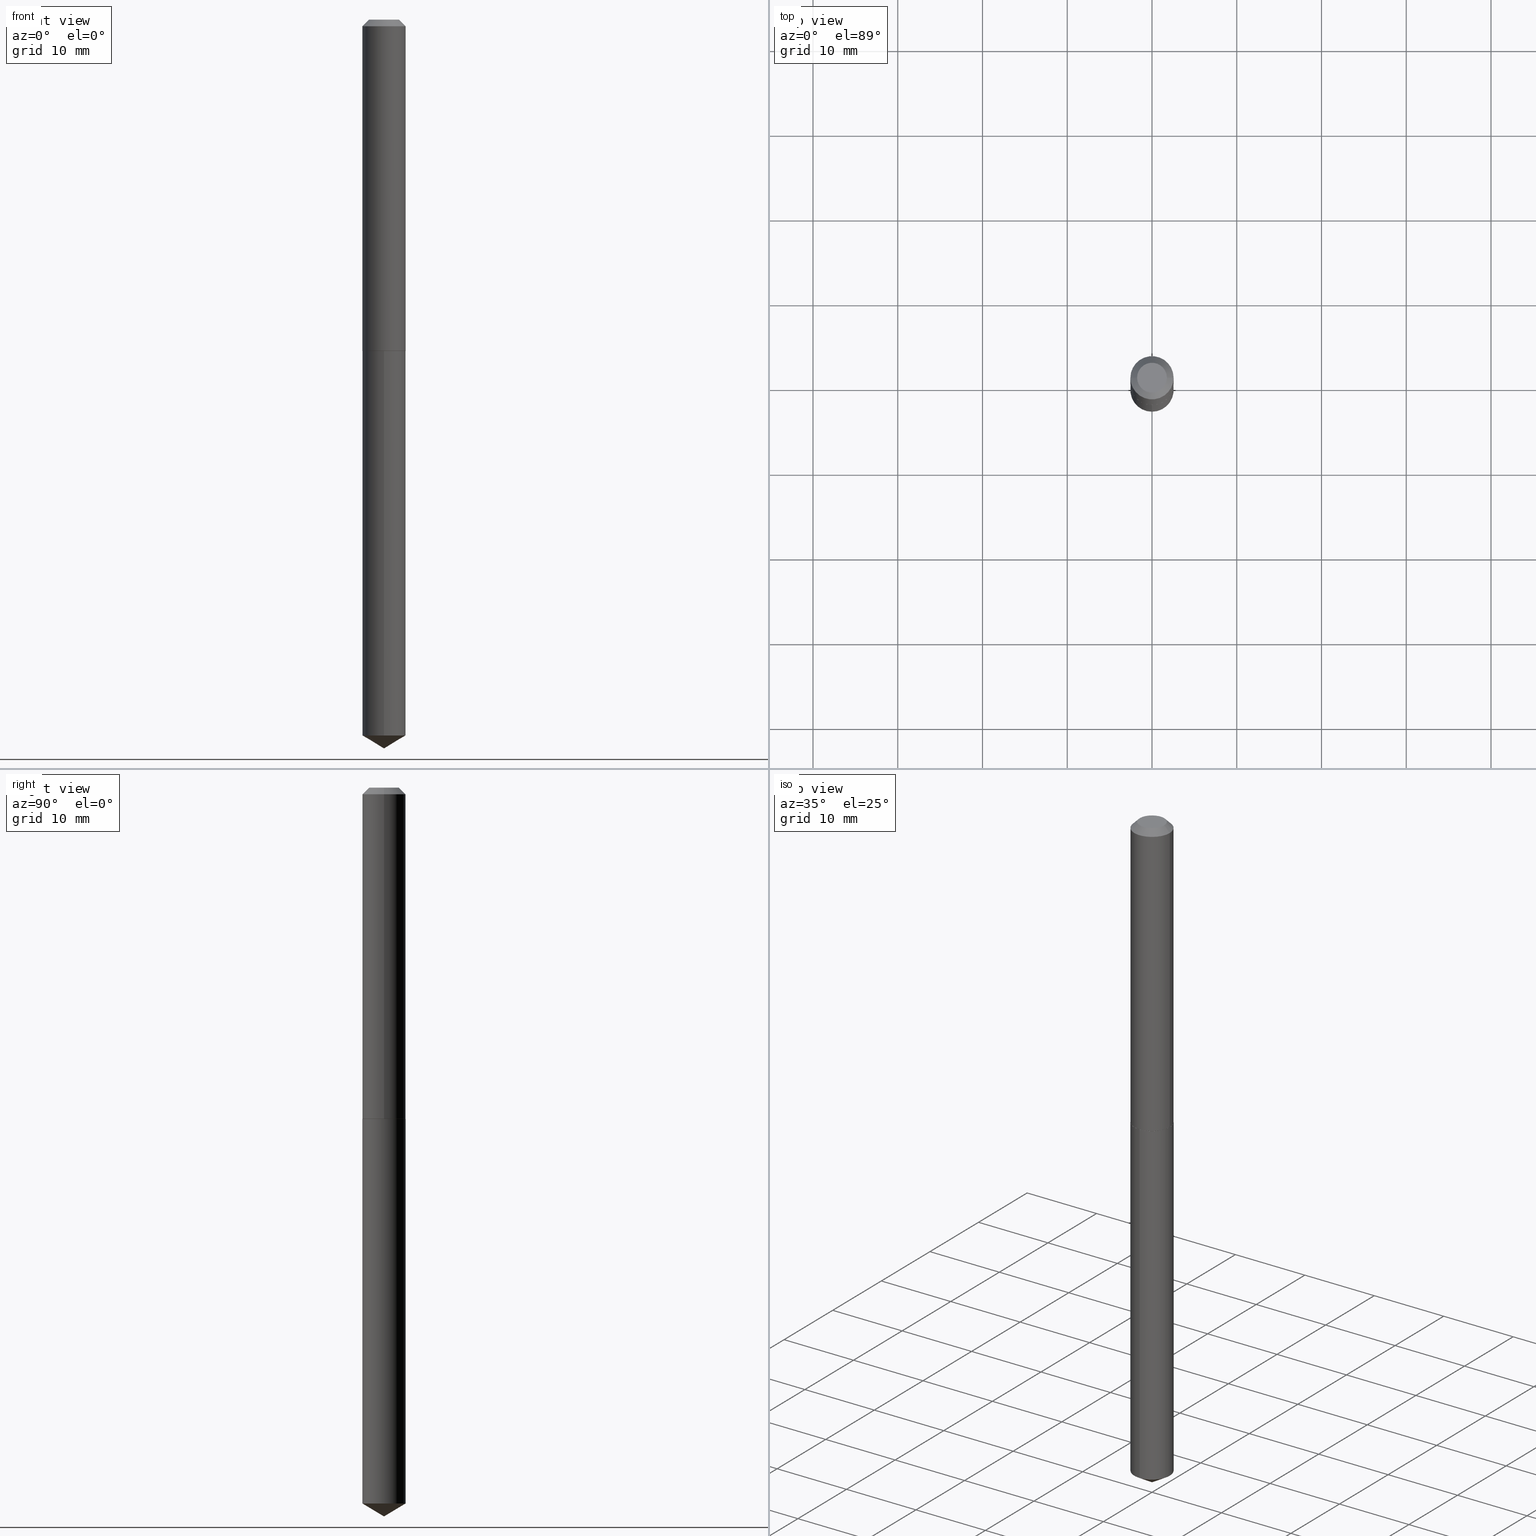
[diagram: canonical four-view strip — front | top / right | iso, engineering-drawing reading convention]
A machine part, canonical four-view strip (front | top / right | iso — engineering-drawing reading convention). The complete STEP part file that produces these views, byte-faithful:
ISO-10303-21;
HEADER;
FILE_DESCRIPTION (( 'STEP AP203' ),
    '1' );
FILE_NAME ('61084.STEP',
    '2024-04-23T03:30:29',
    ( '' ),
    ( '' ),
    'SwSTEP 2.0',
    'SolidWorks 2023',
    '' );
FILE_SCHEMA (( 'CONFIG_CONTROL_DESIGN' ));
ENDSEC;

DATA;
#1 = DIRECTION ( 'NONE',  ( 1.000000000000000000, -6.982962677686261977E-15, 0.000000000000000000 ) ) ;
#2 = FACE_OUTER_BOUND ( 'NONE', #366, .T. ) ;
#3 = PERSON_AND_ORGANIZATION ( #116, #146 ) ;
#4 = VERTEX_POINT ( 'NONE', #136 ) ;
#5 = CIRCLE ( 'NONE', #184, 0.06915000000000000313 ) ;
#6 =( LENGTH_UNIT ( ) NAMED_UNIT ( * ) SI_UNIT ( $, .METRE. ) );
#7 = ORIENTED_EDGE ( 'NONE', *, *, #261, .T. ) ;
#8 = DIRECTION ( 'NONE',  ( -2.445468806185136877E-29, 3.491481338843145188E-15, 1.000000000000000000 ) ) ;
#9 = ORIENTED_EDGE ( 'NONE', *, *, #273, .T. ) ;
#10 = APPLICATION_PROTOCOL_DEFINITION ( 'international standard', 'config_control_design', 1994, #330 ) ;
#11 = ADVANCED_FACE ( 'NONE', ( #264 ), #385, .F. ) ;
#12 = CIRCLE ( 'NONE', #70, 0.1004000000000000031 ) ;
#13 = CC_DESIGN_SECURITY_CLASSIFICATION ( #97, ( #185 ) ) ;
#14 = DIRECTION ( 'NONE',  ( -2.445468806185136597E-29, 3.491481338843145583E-15, 1.000000000000000000 ) ) ;
#15 = ORIENTED_EDGE ( 'NONE', *, *, #56, .F. ) ;
#16 = ORIENTED_EDGE ( 'NONE', *, *, #58, .T. ) ;
#17 = CALENDAR_DATE ( 2024, 22, 4 ) ;
#18 = DIRECTION ( 'NONE',  ( -1.000000000000000000, 6.982962677686265922E-15, -4.876176775795935793E-29 ) ) ;
#19 = CARTESIAN_POINT ( 'NONE',  ( -0.1004000000000001835, -4.659655725642575772E-15, -1.538900000000000379 ) ) ;
#20 = PLANE ( 'NONE',  #218 ) ;
#21 = ADVANCED_BREP_SHAPE_REPRESENTATION ( '61084', ( #381, #253, #173 ), #67 ) ;
#22 = CALENDAR_DATE ( 2024, 22, 4 ) ;
#23 = ADVANCED_FACE ( 'NONE', ( #202 ), #20, .F. ) ;
#24 = CARTESIAN_POINT ( 'NONE',  ( -0.1004000000000000864, 7.133849067031412005E-16, -4.938610830615929898E-30 ) ) ;
#25 = CARTESIAN_POINT ( 'NONE',  ( 3.764554680241400051E-29, -5.374786373015138969E-15, -1.539400000000000324 ) ) ;
#26 = CARTESIAN_POINT ( 'NONE',  ( 7.642090019328602662E-31, -1.091087918388490267E-16, -0.03125000000000020817 ) ) ;
#27 = DIRECTION ( 'NONE',  ( -1.000000000000000000, 6.982962677686266711E-15, 0.000000000000000000 ) ) ;
#28 = FACE_OUTER_BOUND ( 'NONE', #175, .T. ) ;
#29 = DIRECTION ( 'NONE',  ( -2.445468806185136597E-29, 3.491481338843145583E-15, 1.000000000000000000 ) ) ;
#30 = EDGE_CURVE ( 'NONE', #124, #69, #66, .T. ) ;
#31 = MECHANICAL_CONTEXT ( 'NONE', #330, 'mechanical' ) ;
#32 = CALENDAR_DATE ( 2024, 22, 4 ) ;
#33 = ORIENTED_EDGE ( 'NONE', *, *, #372, .F. ) ;
#34 = AXIS2_PLACEMENT_3D ( 'NONE', #332, #178, #60 ) ;
#35 = AXIS2_PLACEMENT_3D ( 'NONE', #59, #325, #1 ) ;
#36 = LINE ( 'NONE', #90, #153 ) ;
#37 = ORIENTED_EDGE ( 'NONE', *, *, #85, .F. ) ;
#38 = DIRECTION ( 'NONE',  ( 2.445468806185136597E-29, -3.491481338843145583E-15, -1.000000000000000000 ) ) ;
#39 = ORIENTED_EDGE ( 'NONE', *, *, #182, .T. ) ;
#40 = APPROVAL ( #201, 'UNSPECIFIED' ) ;
#41 = PERSON_AND_ORGANIZATION_ROLE ( 'design_supplier' ) ;
#42 = ORIENTED_EDGE ( 'NONE', *, *, #389, .T. ) ;
#43 = EDGE_LOOP ( 'NONE', ( #374, #341, #227, #292 ) ) ;
#44 = PRODUCT_DEFINITION ( 'UNKNOWN', '', #185, #148 ) ;
#45 = DATE_AND_TIME ( #263, #339 ) ;
#46 = ORIENTED_EDGE ( 'NONE', *, *, #76, .T. ) ;
#47 = AXIS2_PLACEMENT_3D ( 'NONE', #269, #81, #121 ) ;
#48 = COORDINATED_UNIVERSAL_TIME_OFFSET ( 5, 0, .BEHIND. ) ;
#49 = DIRECTION ( 'NONE',  ( -2.438088387897960049E-29, 3.491481338843145188E-15, 1.000000000000000000 ) ) ;
#50 = EDGE_CURVE ( 'NONE', #95, #72, #383, .T. ) ;
#51 = SHAPE_DEFINITION_REPRESENTATION ( #305, #21 ) ;
#52 = DIRECTION ( 'NONE',  ( -2.445422507803633721E-29, 3.491547640760597732E-15, 1.000000000000000000 ) ) ;
#53 = CYLINDRICAL_SURFACE ( 'NONE', #131, 0.1004000000000000031 ) ;
#54 = DIRECTION ( 'NONE',  ( -2.445468806185136597E-29, 3.491481338843145583E-15, 1.000000000000000000 ) ) ;
#55 = CIRCLE ( 'NONE', #316, 0.1004000000000000031 ) ;
#56 = EDGE_CURVE ( 'NONE', #69, #72, #169, .T. ) ;
#57 = DIRECTION ( 'NONE',  ( 2.445422507803633441E-29, -3.491547640760597732E-15, -1.000000000000000000 ) ) ;
#58 = EDGE_CURVE ( 'NONE', #194, #133, #12, .T. ) ;
#59 = CARTESIAN_POINT ( 'NONE',  ( 3.764554680241400612E-29, -5.374786373015140547E-15, -1.539400000000000546 ) ) ;
#60 = DIRECTION ( 'NONE',  ( 1.000000000000000000, -6.982962677686269866E-15, 0.000000000000000000 ) ) ;
#61 = AXIS2_PLACEMENT_3D ( 'NONE', #26, #29, #149 ) ;
#62 = CC_DESIGN_PERSON_AND_ORGANIZATION_ASSIGNMENT ( #3, #122, ( #92 ) ) ;
#63 = CARTESIAN_POINT ( 'NONE',  ( -7.010894528396636059E-16, -0.1004000000000053877, -1.539399999999999880 ) ) ;
#64 = VERTEX_POINT ( 'NONE', #376 ) ;
#65 = DIRECTION ( 'NONE',  ( 1.000000000000000000, -6.982962677686266711E-15, 4.876176775795936353E-29 ) ) ;
#66 = CIRCLE ( 'NONE', #245, 0.1004000000000001835 ) ;
#67 =( GEOMETRIC_REPRESENTATION_CONTEXT ( 3 ) GLOBAL_UNCERTAINTY_ASSIGNED_CONTEXT ( ( #109 ) ) GLOBAL_UNIT_ASSIGNED_CONTEXT ( ( #98, #304, #340 ) ) REPRESENTATION_CONTEXT ( 'NONE', 'WORKASPACE' ) );
#68 = DIRECTION ( 'NONE',  ( -2.445422507803633721E-29, 3.491547640760597732E-15, 1.000000000000000000 ) ) ;
#69 = VERTEX_POINT ( 'NONE', #19 ) ;
#70 = AXIS2_PLACEMENT_3D ( 'NONE', #324, #355, #349 ) ;
#71 = VECTOR ( 'NONE', #191, 39.37007874015748143 ) ;
#72 = VERTEX_POINT ( 'NONE', #138 ) ;
#73 = DIRECTION ( 'NONE',  ( 1.000000000000000000, -6.982962677686266711E-15, 4.876176775795936353E-29 ) ) ;
#74 = PERSON_AND_ORGANIZATION ( #116, #146 ) ;
#75 = CARTESIAN_POINT ( 'NONE',  ( 8.249952469089983672E-30, -9.584402790879764099E-15, -1.539400000000000546 ) ) ;
#76 = EDGE_CURVE ( 'NONE', #228, #124, #258, .T. ) ;
#77 = CONICAL_SURFACE ( 'NONE', #347, 0.1004000000000000031, 0.7853981633974449483 ) ;
#78 = FACE_OUTER_BOUND ( 'NONE', #144, .T. ) ;
#79 = VERTEX_POINT ( 'NONE', #172 ) ;
#80 = EDGE_CURVE ( 'NONE', #343, #351, #112, .T. ) ;
#81 = DIRECTION ( 'NONE',  ( -2.445468806185136597E-29, 3.491481338843145583E-15, 1.000000000000000000 ) ) ;
#82 = DIRECTION ( 'NONE',  ( -6.982962677686265922E-15, -1.000000000000000000, 3.468864327941536233E-15 ) ) ;
#83 = LINE ( 'NONE', #331, #309 ) ;
#84 = DIRECTION ( 'NONE',  ( -2.445422507803633721E-29, 3.491547640760597732E-15, 1.000000000000000000 ) ) ;
#85 = EDGE_CURVE ( 'NONE', #95, #64, #5, .T. ) ;
#86 = DIRECTION ( 'NONE',  ( -2.445468806185136597E-29, 3.491481338843145583E-15, 1.000000000000000000 ) ) ;
#87 = AXIS2_PLACEMENT_3D ( 'NONE', #356, #84, #300 ) ;
#88 = PERSON_AND_ORGANIZATION ( #116, #146 ) ;
#89 = ORIENTED_EDGE ( 'NONE', *, *, #261, .F. ) ;
#90 = CARTESIAN_POINT ( 'NONE',  ( 8.279711526921545048E-29, -1.182168200208723334E-14, -3.385800000000000143 ) ) ;
#91 = EDGE_LOOP ( 'NONE', ( #251, #37, #312, #275 ) ) ;
#92 = PRODUCT ( '61084', '61084', '', ( #31 ) ) ;
#93 = LENGTH_MEASURE_WITH_UNIT ( LENGTH_MEASURE( 0.02539999999999999897 ), #6 );
#94 = APPROVAL ( #220, 'UNSPECIFIED' ) ;
#95 = VERTEX_POINT ( 'NONE', #106 ) ;
#96 = VECTOR ( 'NONE', #243, 39.37007874015748143 ) ;
#97 = SECURITY_CLASSIFICATION ( '', '', #382 ) ;
#98 =( CONVERSION_BASED_UNIT ( 'INCH', #93 ) LENGTH_UNIT ( ) NAMED_UNIT ( #210 ) );
#99 = ORIENTED_EDGE ( 'NONE', *, *, #372, .T. ) ;
#100 = ADVANCED_FACE ( 'NONE', ( #260 ), #262, .T. ) ;
#101 = ORIENTED_EDGE ( 'NONE', *, *, #58, .F. ) ;
#102 = DIRECTION ( 'NONE',  ( 0.7071067811863059882, -2.468850131079726789E-15, 0.7071067811867890462 ) ) ;
#103 = AXIS2_PLACEMENT_3D ( 'NONE', #154, #239, #390 ) ;
#104 = CC_DESIGN_APPROVAL ( #244, ( #185 ) ) ;
#105 = APPROVAL_ROLE ( '' ) ;
#106 = CARTESIAN_POINT ( 'NONE',  ( -0.06915000000000000313, 5.374262650814287077E-16, 4.837354856596389538E-19 ) ) ;
#107 = PERSON_AND_ORGANIZATION ( #116, #146 ) ;
#108 = CARTESIAN_POINT ( 'NONE',  ( -0.1004000000000000031, 5.919806610008520747E-16, -0.03125000000000020817 ) ) ;
#109 = UNCERTAINTY_MEASURE_WITH_UNIT (LENGTH_MEASURE( 1.000000000000000082E-05 ), #98, 'distance_accuracy_value', 'NONE');
#110 = COORDINATED_UNIVERSAL_TIME_OFFSET ( 5, 0, .BEHIND. ) ;
#111 = ORIENTED_EDGE ( 'NONE', *, *, #389, .F. ) ;
#112 = CIRCLE ( 'NONE', #235, 0.1004000000000000031 ) ;
#113 = LOCAL_TIME ( 23, 30, 29.00000000000000000, #289 ) ;
#114 = DIRECTION ( 'NONE',  ( -2.445468806185136597E-29, 3.491481338843145583E-15, 1.000000000000000000 ) ) ;
#115 = FACE_OUTER_BOUND ( 'NONE', #43, .T. ) ;
#116 = PERSON ( 'UNSPECIFIED', 'UNSPECIFIED', 'UNSPECIFIED', ('UNSPECIFIED'), ('UNSPECIFIED'), ('UNSPECIFIED') ) ;
#117 = DIRECTION ( 'NONE',  ( -2.445422507803633721E-29, 3.491547640760597732E-15, 1.000000000000000000 ) ) ;
#118 = FACE_OUTER_BOUND ( 'NONE', #91, .T. ) ;
#119 = CARTESIAN_POINT ( 'NONE',  ( -7.010894528396636059E-16, -0.1004000000000053877, -1.539399999999999880 ) ) ;
#120 = ADVANCED_FACE ( 'NONE', ( #78 ), #290, .T. ) ;
#121 = DIRECTION ( 'NONE',  ( 1.000000000000000000, -6.982962677686269866E-15, 0.000000000000000000 ) ) ;
#122 = PERSON_AND_ORGANIZATION_ROLE ( 'design_owner' ) ;
#123 = VECTOR ( 'NONE', #386, 39.37007874015748143 ) ;
#124 = VERTEX_POINT ( 'NONE', #329 ) ;
#125 = ADVANCED_FACE ( 'NONE', ( #28 ), #217, .F. ) ;
#126 = EDGE_LOOP ( 'NONE', ( #190, #39, #46, #345 ) ) ;
#127 = ORIENTED_EDGE ( 'NONE', *, *, #182, .F. ) ;
#128 = DIRECTION ( 'NONE',  ( -2.445468806185136597E-29, 3.491481338843145583E-15, 1.000000000000000000 ) ) ;
#129 = EDGE_CURVE ( 'NONE', #314, #351, #150, .T. ) ;
#130 = EDGE_LOOP ( 'NONE', ( #89, #42, #99, #286 ) ) ;
#131 = AXIS2_PLACEMENT_3D ( 'NONE', #237, #117, #387 ) ;
#132 = CARTESIAN_POINT ( 'NONE',  ( 8.132259247235019686E-29, -1.161094741584563161E-14, -3.325473593849634035 ) ) ;
#133 = VERTEX_POINT ( 'NONE', #272 ) ;
#134 = CC_DESIGN_PERSON_AND_ORGANIZATION_ASSIGNMENT ( #74, #375, ( #97 ) ) ;
#135 = DATE_AND_TIME ( #22, #113 ) ;
#136 = CARTESIAN_POINT ( 'NONE',  ( 0.1004000000000000031, -8.101982446785502760E-16, -0.03125000000000020817 ) ) ;
#137 = CALENDAR_DATE ( 2024, 22, 4 ) ;
#138 = CARTESIAN_POINT ( 'NONE',  ( -0.1004000000000000031, -2.027689805389141589E-15, -0.03125000000000020817 ) ) ;
#139 = CIRCLE ( 'NONE', #61, 0.1004000000000000031 ) ;
#140 = ADVANCED_FACE ( 'NONE', ( #267 ), #53, .T. ) ;
#141 = DIRECTION ( 'NONE',  ( 1.000000000000000000, -6.982962677686267499E-15, 4.876150890010814113E-29 ) ) ;
#142 = DIRECTION ( 'NONE',  ( 1.000000000000000000, -6.982962677686265922E-15, 4.876176775795935793E-29 ) ) ;
#143 = APPROVAL_STATUS ( 'not_yet_approved' ) ;
#144 = EDGE_LOOP ( 'NONE', ( #165, #159, #337 ) ) ;
#145 = AXIS2_PLACEMENT_3D ( 'NONE', #361, #357, #27 ) ;
#146 = ORGANIZATION ( 'UNSPECIFIED', 'UNSPECIFIED', '' ) ;
#147 = DIRECTION ( 'NONE',  ( -2.445422507803633721E-29, 3.491547640760597732E-15, 1.000000000000000000 ) ) ;
#148 = DESIGN_CONTEXT ( 'detailed design', #276, 'design' ) ;
#149 = DIRECTION ( 'NONE',  ( 1.000000000000000000, -6.982962677686266711E-15, 0.000000000000000000 ) ) ;
#150 = LINE ( 'NONE', #156, #333 ) ;
#151 = ADVANCED_FACE ( 'NONE', ( #183 ), #265, .T. ) ;
#152 = CIRCLE ( 'NONE', #270, 0.06915000000000000313 ) ;
#153 = VECTOR ( 'NONE', #187, 39.37007874015748854 ) ;
#154 = CARTESIAN_POINT ( 'NONE',  ( 3.763331945838307250E-29, -5.373040632345718254E-15, -1.538900000000000379 ) ) ;
#155 = ADVANCED_FACE ( 'NONE', ( #296 ), #378, .T. ) ;
#156 = CARTESIAN_POINT ( 'NONE',  ( 8.279855320316373455E-29, -1.182147787174378112E-14, -3.385800000000000143 ) ) ;
#157 = CARTESIAN_POINT ( 'NONE',  ( 0.1004000000000000864, -7.010894528397017670E-16, 4.895681482899124059E-30 ) ) ;
#158 = ORIENTED_EDGE ( 'NONE', *, *, #56, .T. ) ;
#159 = ORIENTED_EDGE ( 'NONE', *, *, #129, .T. ) ;
#160 = CC_DESIGN_PERSON_AND_ORGANIZATION_ASSIGNMENT ( #107, #293, ( #185 ) ) ;
#161 = CARTESIAN_POINT ( 'NONE',  ( 3.764554680241400051E-29, -5.374786373015138969E-15, -1.539400000000000324 ) ) ;
#162 = ORIENTED_EDGE ( 'NONE', *, *, #129, .F. ) ;
#163 = CARTESIAN_POINT ( 'NONE',  ( -7.010894528396199227E-16, -0.1004000000000116188, -3.325473593849633591 ) ) ;
#164 = ADVANCED_FACE ( 'NONE', ( #2 ), #213, .T. ) ;
#165 = ORIENTED_EDGE ( 'NONE', *, *, #308, .F. ) ;
#166 = PERSON_AND_ORGANIZATION ( #116, #146 ) ;
#167 = EDGE_LOOP ( 'NONE', ( #162, #196, #111 ) ) ;
#168 = PERSON_AND_ORGANIZATION ( #116, #146 ) ;
#169 = LINE ( 'NONE', #24, #224 ) ;
#170 = ADVANCED_FACE ( 'NONE', ( #115 ), #203, .T. ) ;
#171 = DATE_TIME_ROLE ( 'classification_date' ) ;
#172 = CARTESIAN_POINT ( 'NONE',  ( -0.09990000000000034963, -4.662304952816686973E-15, -1.539400000000000546 ) ) ;
#173 = AXIS2_PLACEMENT_3D ( 'NONE', #274, #342, #195 ) ;
#174 = DATE_AND_TIME ( #137, #379 ) ;
#175 = EDGE_LOOP ( 'NONE', ( #16, #348 ) ) ;
#176 = ADVANCED_FACE ( 'NONE', ( #118 ), #362, .T. ) ;
#177 = CARTESIAN_POINT ( 'NONE',  ( -1.182960040634188585E-47, 1.688953421129311321E-33, 4.837354856632064502E-19 ) ) ;
#178 = DIRECTION ( 'NONE',  ( -2.445468806185136597E-29, 3.491481338843145583E-15, 1.000000000000000000 ) ) ;
#179 = VECTOR ( 'NONE', #8, 39.37007874015748143 ) ;
#180 = DIRECTION ( 'NONE',  ( -0.7071067811863059882, 7.493145998869481680E-15, 0.7071067811867890462 ) ) ;
#181 = DIRECTION ( 'NONE',  ( 6.982962677686265922E-15, 1.000000000000000000, -3.491547640760597732E-15 ) ) ;
#182 = EDGE_CURVE ( 'NONE', #79, #228, #211, .T. ) ;
#183 = FACE_OUTER_BOUND ( 'NONE', #126, .T. ) ;
#184 = AXIS2_PLACEMENT_3D ( 'NONE', #177, #318, #141 ) ;
#185 = PRODUCT_DEFINITION_FORMATION_WITH_SPECIFIED_SOURCE ( 'ANY', '', #92, .NOT_KNOWN. ) ;
#186 = DIRECTION ( 'NONE',  ( 1.000000000000000000, -6.982962677686261977E-15, 0.000000000000000000 ) ) ;
#187 = DIRECTION ( 'NONE',  ( -5.985567269335968101E-15, -0.8571673007021142210, 0.5150380749100507138 ) ) ;
#188 = APPROVAL_ROLE ( '' ) ;
#189 = CC_DESIGN_PERSON_AND_ORGANIZATION_ASSIGNMENT ( #168, #41, ( #185 ) ) ;
#190 = ORIENTED_EDGE ( 'NONE', *, *, #249, .F. ) ;
#191 = DIRECTION ( 'NONE',  ( -2.445422507803633721E-29, 3.491547640760597732E-15, 1.000000000000000000 ) ) ;
#192 = ORIENTED_EDGE ( 'NONE', *, *, #214, .F. ) ;
#193 = CARTESIAN_POINT ( 'NONE',  ( 7.642090019328602662E-31, -1.091087918388490267E-16, -0.03125000000000020817 ) ) ;
#194 = VERTEX_POINT ( 'NONE', #119 ) ;
#195 = DIRECTION ( 'NONE',  ( 1.000000000000000000, 0.000000000000000000, 0.000000000000000000 ) ) ;
#196 = ORIENTED_EDGE ( 'NONE', *, *, #308, .T. ) ;
#197 = CIRCLE ( 'NONE', #34, 0.1004000000000001835 ) ;
#198 = DIRECTION ( 'NONE',  ( 2.438088387897960049E-29, -3.491481338843145188E-15, -1.000000000000000000 ) ) ;
#199 = APPROVAL_ROLE ( '' ) ;
#200 = ORIENTED_EDGE ( 'NONE', *, *, #238, .F. ) ;
#201 = APPROVAL_STATUS ( 'not_yet_approved' ) ;
#202 = FACE_OUTER_BOUND ( 'NONE', #335, .T. ) ;
#203 = CONICAL_SURFACE ( 'NONE', #47, 0.1004000000000001835, 0.7853981633971067744 ) ;
#204 = APPROVAL_PERSON_ORGANIZATION ( #88, #94, #188 ) ;
#205 = APPROVAL_DATE_TIME ( #174, #40 ) ;
#206 = CARTESIAN_POINT ( 'NONE',  ( -8.799669388653239738E-28, 1.256409256048403170E-13, 35.98427874015747818 ) ) ;
#207 = CC_DESIGN_DATE_AND_TIME_ASSIGNMENT ( #135, #384, ( #44 ) ) ;
#208 = EDGE_LOOP ( 'NONE', ( #200, #127 ) ) ;
#209 = LINE ( 'NONE', #242, #96 ) ;
#210 = DIMENSIONAL_EXPONENTS ( 1.000000000000000000, 0.000000000000000000, 0.000000000000000000, 0.000000000000000000, 0.000000000000000000, 0.000000000000000000, 0.000000000000000000 ) ;
#211 = CIRCLE ( 'NONE', #35, 0.09990000000000034963 ) ;
#212 = CC_DESIGN_APPROVAL ( #40, ( #97 ) ) ;
#213 = CYLINDRICAL_SURFACE ( 'NONE', #87, 0.1004000000000000031 ) ;
#214 = EDGE_CURVE ( 'NONE', #64, #95, #152, .T. ) ;
#215 = DIRECTION ( 'NONE',  ( 1.000000000000000000, -6.982962677686267499E-15, 4.876150890010814113E-29 ) ) ;
#216 = EDGE_CURVE ( 'NONE', #64, #4, #209, .T. ) ;
#217 = PLANE ( 'NONE',  #327 ) ;
#218 = AXIS2_PLACEMENT_3D ( 'NONE', #288, #198, #18 ) ;
#219 = DIRECTION ( 'NONE',  ( -6.982962677686266711E-15, -1.000000000000000000, 5.441928274231599754E-15 ) ) ;
#220 = APPROVAL_STATUS ( 'not_yet_approved' ) ;
#221 = ORIENTED_EDGE ( 'NONE', *, *, #273, .F. ) ;
#222 = CARTESIAN_POINT ( 'NONE',  ( 7.642090019328602662E-31, -1.091087918388490267E-16, -0.03125000000000020817 ) ) ;
#223 = EDGE_LOOP ( 'NONE', ( #307, #158, #221, #311 ) ) ;
#224 = VECTOR ( 'NONE', #255, 39.37007874015748143 ) ;
#225 = ORIENTED_EDGE ( 'NONE', *, *, #226, .T. ) ;
#226 = EDGE_CURVE ( 'NONE', #69, #124, #197, .T. ) ;
#227 = ORIENTED_EDGE ( 'NONE', *, *, #30, .F. ) ;
#228 = VERTEX_POINT ( 'NONE', #271 ) ;
#229 = CARTESIAN_POINT ( 'NONE',  ( 8.132259247235019686E-29, -1.161094741584563161E-14, -3.325473593849634035 ) ) ;
#230 = LOCAL_TIME ( 23, 30, 29.00000000000000000, #306 ) ;
#231 = ORIENTED_EDGE ( 'NONE', *, *, #216, .T. ) ;
#232 = PERSON_AND_ORGANIZATION ( #116, #146 ) ;
#233 = CARTESIAN_POINT ( 'NONE',  ( 0.000000000000000000, 0.000000000000000000, 0.000000000000000000 ) ) ;
#234 = DIRECTION ( 'NONE',  ( 1.000000000000000000, -6.982962677686269866E-15, 0.000000000000000000 ) ) ;
#235 = AXIS2_PLACEMENT_3D ( 'NONE', #229, #52, #291 ) ;
#236 = CARTESIAN_POINT ( 'NONE',  ( 3.763331945838307250E-29, -5.373040632345718254E-15, -1.538900000000000379 ) ) ;
#237 = CARTESIAN_POINT ( 'NONE',  ( 3.764554680241400051E-29, -5.374786373015138969E-15, -1.539400000000000324 ) ) ;
#238 = EDGE_CURVE ( 'NONE', #228, #79, #283, .T. ) ;
#239 = DIRECTION ( 'NONE',  ( -2.445468806185136597E-29, 3.491481338843145583E-15, 1.000000000000000000 ) ) ;
#240 = CLOSED_SHELL ( 'NONE', ( #281, #100, #170, #11, #151, #313, #176, #23 ) ) ;
#241 = CARTESIAN_POINT ( 'NONE',  ( -0.1004000000000001835, -4.659655725642575772E-15, -1.538900000000000379 ) ) ;
#242 = CARTESIAN_POINT ( 'NONE',  ( 0.1004000000000000031, -7.979027908151109411E-16, -0.03125000000000020817 ) ) ;
#243 = DIRECTION ( 'NONE',  ( 0.7071067811865451302, -7.319954787623248157E-15, -0.7071067811865499042 ) ) ;
#244 = APPROVAL ( #143, 'UNSPECIFIED' ) ;
#245 = AXIS2_PLACEMENT_3D ( 'NONE', #236, #114, #234 ) ;
#246 = APPLICATION_PROTOCOL_DEFINITION ( 'international standard', 'config_control_design', 1994, #276 ) ;
#247 = DIRECTION ( 'NONE',  ( -1.000000000000000000, 6.982962677686266711E-15, 0.000000000000000000 ) ) ;
#248 = ORIENTED_EDGE ( 'NONE', *, *, #50, .F. ) ;
#249 = EDGE_CURVE ( 'NONE', #79, #69, #303, .T. ) ;
#250 = CIRCLE ( 'NONE', #278, 0.1004000000000000031 ) ;
#251 = ORIENTED_EDGE ( 'NONE', *, *, #216, .F. ) ;
#252 = CYLINDRICAL_SURFACE ( 'NONE', #266, 0.1004000000000000864 ) ;
#253 = MANIFOLD_SOLID_BREP ( 'Body-Move/Copy2[2]', #240 ) ;
#254 = PERSON_AND_ORGANIZATION ( #116, #146 ) ;
#255 = DIRECTION ( 'NONE',  ( -2.445468806185136877E-29, 3.491481338843145188E-15, 1.000000000000000000 ) ) ;
#256 = DATE_AND_TIME ( #32, #230 ) ;
#257 = VECTOR ( 'NONE', #180, 39.37007874015748143 ) ;
#258 = LINE ( 'NONE', #380, #369 ) ;
#259 = DATE_AND_TIME ( #17, #370 ) ;
#260 = FACE_OUTER_BOUND ( 'NONE', #223, .T. ) ;
#261 = EDGE_CURVE ( 'NONE', #351, #133, #83, .T. ) ;
#262 = CYLINDRICAL_SURFACE ( 'NONE', #358, 0.1004000000000000864 ) ;
#263 = CALENDAR_DATE ( 2024, 22, 4 ) ;
#264 = FACE_OUTER_BOUND ( 'NONE', #208, .T. ) ;
#265 = CONICAL_SURFACE ( 'NONE', #103, 0.1004000000000001835, 0.7853981633971067744 ) ;
#266 = AXIS2_PLACEMENT_3D ( 'NONE', #371, #14, #65 ) ;
#267 = FACE_OUTER_BOUND ( 'NONE', #130, .T. ) ;
#268 = CARTESIAN_POINT ( 'NONE',  ( -1.182960040634188585E-47, 1.688953421129311321E-33, 4.837354856632064502E-19 ) ) ;
#269 = CARTESIAN_POINT ( 'NONE',  ( 3.763331945838307250E-29, -5.373040632345718254E-15, -1.538900000000000379 ) ) ;
#270 = AXIS2_PLACEMENT_3D ( 'NONE', #268, #86, #215 ) ;
#271 = CARTESIAN_POINT ( 'NONE',  ( 0.09990000000000034963, -6.072384344516000194E-15, -1.539400000000000546 ) ) ;
#272 = CARTESIAN_POINT ( 'NONE',  ( 7.133849067032221574E-16, 0.1003999999999946324, -1.539400000000000546 ) ) ;
#273 = EDGE_CURVE ( 'NONE', #4, #72, #139, .T. ) ;
#274 = CARTESIAN_POINT ( 'NONE',  ( 0.000000000000000000, 0.000000000000000000, 0.000000000000000000 ) ) ;
#275 = ORIENTED_EDGE ( 'NONE', *, *, #302, .T. ) ;
#276 = APPLICATION_CONTEXT ( 'configuration controlled 3d designs of mechanical parts and assemblies' ) ;
#277 = AXIS2_PLACEMENT_3D ( 'NONE', #206, #295, #301 ) ;
#278 = AXIS2_PLACEMENT_3D ( 'NONE', #193, #128, #365 ) ;
#279 = LINE ( 'NONE', #63, #71 ) ;
#280 = ORIENTED_EDGE ( 'NONE', *, *, #377, .T. ) ;
#281 = ADVANCED_FACE ( 'NONE', ( #388 ), #77, .T. ) ;
#282 = CARTESIAN_POINT ( 'NONE',  ( 8.279711526921543927E-29, -1.182168200208723334E-14, -3.385800000000000143 ) ) ;
#283 = CIRCLE ( 'NONE', #322, 0.09990000000000034963 ) ;
#284 = CC_DESIGN_APPROVAL ( #94, ( #44 ) ) ;
#285 = EDGE_LOOP ( 'NONE', ( #15, #225, #280, #364 ) ) ;
#286 = ORIENTED_EDGE ( 'NONE', *, *, #320, .F. ) ;
#287 = APPROVAL_DATE_TIME ( #45, #244 ) ;
#288 = CARTESIAN_POINT ( 'NONE',  ( -5.914800203170942927E-48, 8.444767105646556605E-34, 2.418677428316032251E-19 ) ) ;
#289 = COORDINATED_UNIVERSAL_TIME_OFFSET ( 5, 0, .BEHIND. ) ;
#290 = CONICAL_SURFACE ( 'NONE', #277, 65.52281426576952583, 1.029744258676661861 ) ;
#291 = DIRECTION ( 'NONE',  ( -6.982962677686266711E-15, -1.000000000000000000, 5.441928274231599754E-15 ) ) ;
#292 = ORIENTED_EDGE ( 'NONE', *, *, #76, .F. ) ;
#293 = PERSON_AND_ORGANIZATION_ROLE ( 'creator' ) ;
#294 = PRODUCT_RELATED_PRODUCT_CATEGORY ( 'detail', '', ( #92 ) ) ;
#295 = DIRECTION ( 'NONE',  ( -2.445422507803633721E-29, 3.491547640760597732E-15, 1.000000000000000000 ) ) ;
#296 = FACE_OUTER_BOUND ( 'NONE', #167, .T. ) ;
#297 = APPROVAL_PERSON_ORGANIZATION ( #254, #244, #199 ) ;
#298 = DIRECTION ( 'NONE',  ( -2.445422507803633721E-29, 3.491547640760597732E-15, 1.000000000000000000 ) ) ;
#299 = CC_DESIGN_PERSON_AND_ORGANIZATION_ASSIGNMENT ( #232, #344, ( #44 ) ) ;
#300 = DIRECTION ( 'NONE',  ( -6.982962677686266711E-15, -1.000000000000000000, 2.720964137115799877E-15 ) ) ;
#301 = DIRECTION ( 'NONE',  ( -6.982962677686265922E-15, -1.000000000000000000, 3.468864327941536233E-15 ) ) ;
#302 = EDGE_CURVE ( 'NONE', #72, #4, #250, .T. ) ;
#303 = LINE ( 'NONE', #241, #257 ) ;
#304 =( NAMED_UNIT ( * ) PLANE_ANGLE_UNIT ( ) SI_UNIT ( $, .RADIAN. ) );
#305 = PRODUCT_DEFINITION_SHAPE ( 'NONE', 'NONE',  #44 ) ;
#306 = COORDINATED_UNIVERSAL_TIME_OFFSET ( 5, 0, .BEHIND. ) ;
#307 = ORIENTED_EDGE ( 'NONE', *, *, #30, .T. ) ;
#308 = EDGE_CURVE ( 'NONE', #314, #343, #36, .T. ) ;
#309 = VECTOR ( 'NONE', #298, 39.37007874015748143 ) ;
#310 = LINE ( 'NONE', #157, #179 ) ;
#311 = ORIENTED_EDGE ( 'NONE', *, *, #377, .F. ) ;
#312 = ORIENTED_EDGE ( 'NONE', *, *, #50, .T. ) ;
#313 = ADVANCED_FACE ( 'NONE', ( #336 ), #252, .T. ) ;
#314 = VERTEX_POINT ( 'NONE', #282 ) ;
#315 = AXIS2_PLACEMENT_3D ( 'NONE', #75, #49, #142 ) ;
#316 = AXIS2_PLACEMENT_3D ( 'NONE', #132, #68, #219 ) ;
#317 = ORIENTED_EDGE ( 'NONE', *, *, #214, .T. ) ;
#318 = DIRECTION ( 'NONE',  ( -2.445468806185136597E-29, 3.491481338843145583E-15, 1.000000000000000000 ) ) ;
#319 = ORIENTED_EDGE ( 'NONE', *, *, #80, .T. ) ;
#320 = EDGE_CURVE ( 'NONE', #133, #194, #328, .T. ) ;
#321 = COORDINATED_UNIVERSAL_TIME_OFFSET ( 5, 0, .BEHIND. ) ;
#322 = AXIS2_PLACEMENT_3D ( 'NONE', #326, #54, #186 ) ;
#323 = EDGE_LOOP ( 'NONE', ( #192, #231, #9, #248 ) ) ;
#324 = CARTESIAN_POINT ( 'NONE',  ( 3.764554680241400051E-29, -5.374786373015138969E-15, -1.539400000000000324 ) ) ;
#325 = DIRECTION ( 'NONE',  ( -2.445468806185136597E-29, 3.491481338843145583E-15, 1.000000000000000000 ) ) ;
#326 = CARTESIAN_POINT ( 'NONE',  ( 3.764554680241400612E-29, -5.374786373015140547E-15, -1.539400000000000546 ) ) ;
#327 = AXIS2_PLACEMENT_3D ( 'NONE', #25, #57, #181 ) ;
#328 = CIRCLE ( 'NONE', #354, 0.1004000000000000031 ) ;
#329 = CARTESIAN_POINT ( 'NONE',  ( 0.1004000000000001835, -6.074130085185420909E-15, -1.538900000000000379 ) ) ;
#330 = APPLICATION_CONTEXT ( 'configuration controlled 3d designs of mechanical parts and assemblies' ) ;
#331 = CARTESIAN_POINT ( 'NONE',  ( 7.133849067031780798E-16, 0.1003999999999946324, -1.539400000000000546 ) ) ;
#332 = CARTESIAN_POINT ( 'NONE',  ( 3.763331945838307250E-29, -5.373040632345718254E-15, -1.538900000000000379 ) ) ;
#333 = VECTOR ( 'NONE', #360, 39.37007874015748143 ) ;
#334 = DIRECTION ( 'NONE',  ( -2.445422507803633721E-29, 3.491547640760597732E-15, 1.000000000000000000 ) ) ;
#335 = EDGE_LOOP ( 'NONE', ( #368, #317 ) ) ;
#336 = FACE_OUTER_BOUND ( 'NONE', #285, .T. ) ;
#337 = ORIENTED_EDGE ( 'NONE', *, *, #80, .F. ) ;
#338 = AXIS2_PLACEMENT_3D ( 'NONE', #359, #147, #82 ) ;
#339 = LOCAL_TIME ( 23, 30, 29.00000000000000000, #110 ) ;
#340 =( NAMED_UNIT ( * ) SI_UNIT ( $, .STERADIAN. ) SOLID_ANGLE_UNIT ( ) );
#341 = ORIENTED_EDGE ( 'NONE', *, *, #249, .T. ) ;
#342 = DIRECTION ( 'NONE',  ( 0.000000000000000000, 0.000000000000000000, 1.000000000000000000 ) ) ;
#343 = VERTEX_POINT ( 'NONE', #163 ) ;
#344 = PERSON_AND_ORGANIZATION_ROLE ( 'creator' ) ;
#345 = ORIENTED_EDGE ( 'NONE', *, *, #226, .F. ) ;
#346 = CLOSED_SHELL ( 'NONE', ( #164, #120, #155, #140, #125 ) ) ;
#347 = AXIS2_PLACEMENT_3D ( 'NONE', #222, #38, #247 ) ;
#348 = ORIENTED_EDGE ( 'NONE', *, *, #320, .T. ) ;
#349 = DIRECTION ( 'NONE',  ( -6.982962677686266711E-15, -1.000000000000000000, 2.720964137115799877E-15 ) ) ;
#350 = APPROVAL_DATE_TIME ( #256, #94 ) ;
#351 = VERTEX_POINT ( 'NONE', #373 ) ;
#352 = CC_DESIGN_DATE_AND_TIME_ASSIGNMENT ( #259, #171, ( #97 ) ) ;
#353 = DIRECTION ( 'NONE',  ( -2.445468806185136597E-29, 3.491481338843145583E-15, 1.000000000000000000 ) ) ;
#354 = AXIS2_PLACEMENT_3D ( 'NONE', #161, #334, #367 ) ;
#355 = DIRECTION ( 'NONE',  ( -2.445422507803633721E-29, 3.491547640760597732E-15, 1.000000000000000000 ) ) ;
#356 = CARTESIAN_POINT ( 'NONE',  ( 3.764554680241400051E-29, -5.374786373015138969E-15, -1.539400000000000324 ) ) ;
#357 = DIRECTION ( 'NONE',  ( 2.445468806185136597E-29, -3.491481338843145583E-15, -1.000000000000000000 ) ) ;
#358 = AXIS2_PLACEMENT_3D ( 'NONE', #233, #353, #73 ) ;
#359 = CARTESIAN_POINT ( 'NONE',  ( -8.799669388653239738E-28, 1.256409256048403170E-13, 35.98427874015747818 ) ) ;
#360 = DIRECTION ( 'NONE',  ( 6.090539988449806046E-15, 0.8571673007021179957, 0.5150380749100448297 ) ) ;
#361 = CARTESIAN_POINT ( 'NONE',  ( 7.642090019328602662E-31, -1.091087918388490267E-16, -0.03125000000000020817 ) ) ;
#362 = CONICAL_SURFACE ( 'NONE', #145, 0.1004000000000000031, 0.7853981633974449483 ) ;
#363 = APPROVAL_PERSON_ORGANIZATION ( #166, #40, #105 ) ;
#364 = ORIENTED_EDGE ( 'NONE', *, *, #302, .F. ) ;
#365 = DIRECTION ( 'NONE',  ( 1.000000000000000000, -6.982962677686266711E-15, 0.000000000000000000 ) ) ;
#366 = EDGE_LOOP ( 'NONE', ( #319, #7, #101, #33 ) ) ;
#367 = DIRECTION ( 'NONE',  ( -6.982962677686266711E-15, -1.000000000000000000, 2.720964137115799877E-15 ) ) ;
#368 = ORIENTED_EDGE ( 'NONE', *, *, #85, .T. ) ;
#369 = VECTOR ( 'NONE', #102, 39.37007874015748143 ) ;
#370 = LOCAL_TIME ( 23, 30, 29.00000000000000000, #321 ) ;
#371 = CARTESIAN_POINT ( 'NONE',  ( 0.000000000000000000, 0.000000000000000000, 0.000000000000000000 ) ) ;
#372 = EDGE_CURVE ( 'NONE', #343, #194, #279, .T. ) ;
#373 = CARTESIAN_POINT ( 'NONE',  ( 7.133849067032217629E-16, 0.1003999999999884013, -3.325473593849634923 ) ) ;
#374 = ORIENTED_EDGE ( 'NONE', *, *, #238, .T. ) ;
#375 = PERSON_AND_ORGANIZATION_ROLE ( 'classification_officer' ) ;
#376 = CARTESIAN_POINT ( 'NONE',  ( 0.06915000000000000313, -6.361531136805061115E-16, 4.837354856671185917E-19 ) ) ;
#377 = EDGE_CURVE ( 'NONE', #124, #4, #310, .T. ) ;
#378 = CONICAL_SURFACE ( 'NONE', #338, 65.52281426576952583, 1.029744258676661861 ) ;
#379 = LOCAL_TIME ( 23, 30, 29.00000000000000000, #48 ) ;
#380 = CARTESIAN_POINT ( 'NONE',  ( 0.1004000000000001835, -6.074130085185420909E-15, -1.538900000000000379 ) ) ;
#381 = MANIFOLD_SOLID_BREP ( 'Body-Move/Copy2[1]', #346 ) ;
#382 = SECURITY_CLASSIFICATION_LEVEL ( 'unclassified' ) ;
#383 = LINE ( 'NONE', #108, #123 ) ;
#384 = DATE_TIME_ROLE ( 'creation_date' ) ;
#385 = PLANE ( 'NONE',  #315 ) ;
#386 = DIRECTION ( 'NONE',  ( -0.7071067811865451302, 2.468850131082231817E-15, -0.7071067811865499042 ) ) ;
#387 = DIRECTION ( 'NONE',  ( -6.982962677686266711E-15, -1.000000000000000000, 2.720964137115799877E-15 ) ) ;
#388 = FACE_OUTER_BOUND ( 'NONE', #323, .T. ) ;
#389 = EDGE_CURVE ( 'NONE', #351, #343, #55, .T. ) ;
#390 = DIRECTION ( 'NONE',  ( 1.000000000000000000, -6.982962677686269866E-15, 0.000000000000000000 ) ) ;
ENDSEC;
END-ISO-10303-21;
